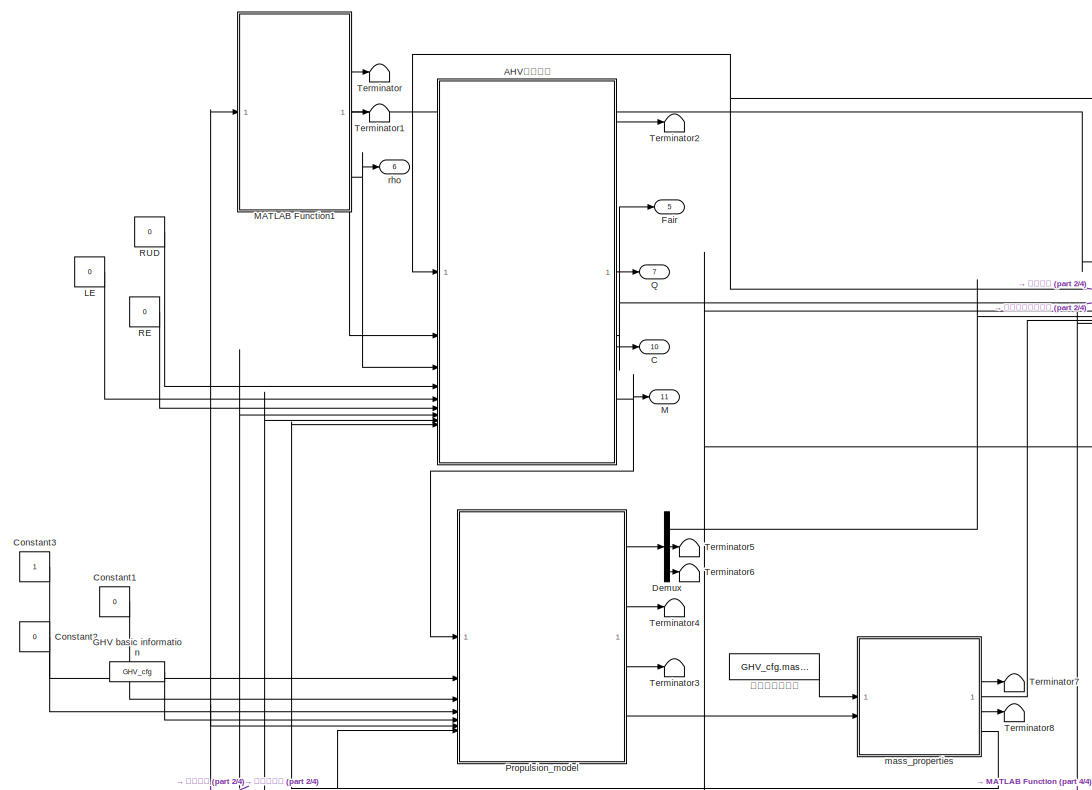
[diagram: root canvas - part 1/4, middle left region]
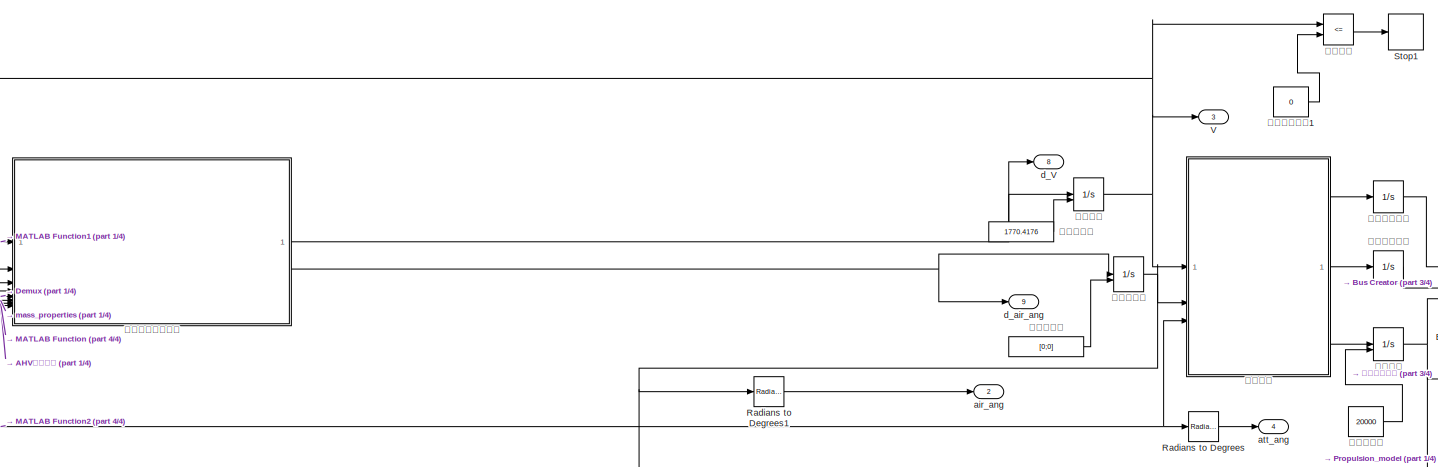
[diagram: root canvas - part 2/4, top right region]
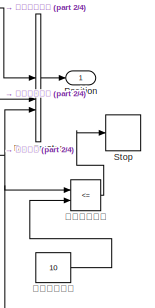
[diagram: root canvas - part 3/4, top right region]
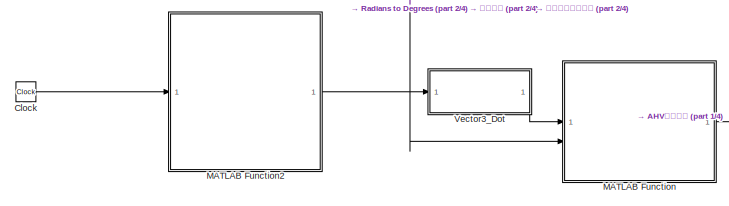
[diagram: root canvas - part 4/4, bottom left region]
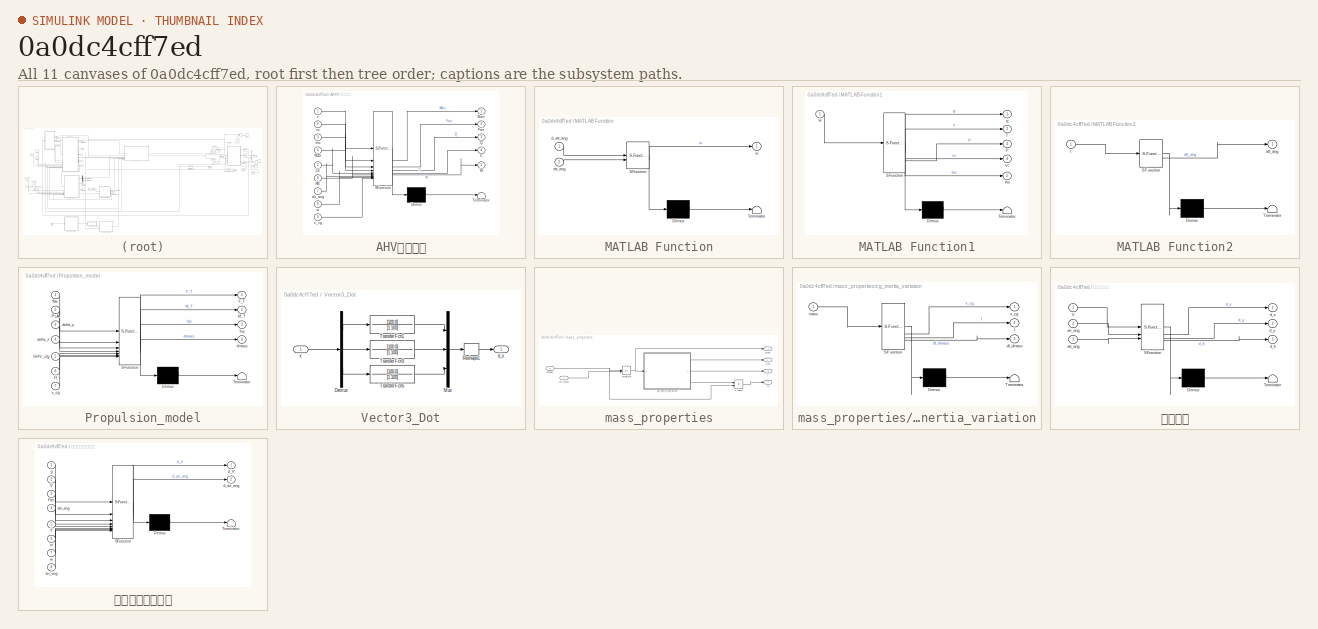
[diagram: thumbnail index - all 11 canvases of the model, root first then tree order]
MODEL slx_0a0dc4cff7ed
KIND model
CONFIG AbsTol = auto
CONFIG EnableMultiTasking = off
CONFIG FixedStep = 0.0000001
CONFIG MaxStep = 0.1
CONFIG MinStep = auto
CONFIG RelTol = 1e-3
CONFIG SampleTimeConstraint = Unconstrained
CONFIG SolverName = VariableStepAuto
CONFIG StartTime = 0.0
CONFIG StopTime = 130
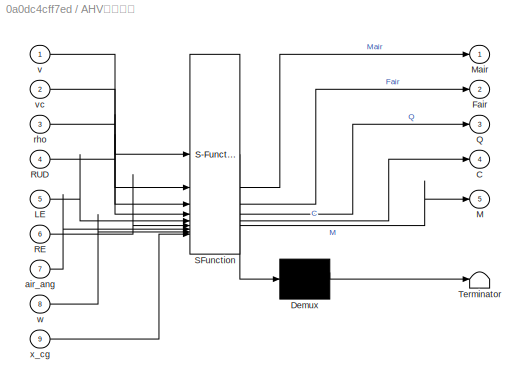
BLOCK [SubSystem] AHV气动参数
  ErrorFcn = Stateflow.Translate.translate
  PermitHierarchicalResolution = ExplicitOnly
  SFBlockType = MATLAB Function
  TreatAsAtomicUnit = on
BLOCK [Demux] AHV气动参数/ Demux 
  Outputs = 1
BLOCK [S-Function] AHV气动参数/ SFunction 
  EnableBusSupport = on
  FunctionName = sf_sfun
  PortCounts = [9 6]
  SFcnIsStateOwnerBlock = off
  SFunctionDeploymentMode = off
  Tag = Stateflow S-Function 4
BLOCK [Terminator] AHV气动参数/ Terminator 
BLOCK [Outport] AHV气动参数/C
  Port = 4
BLOCK [Outport] AHV气动参数/Fair
  Port = 2
BLOCK [Inport] AHV气动参数/LE
  Port = 5
BLOCK [Outport] AHV气动参数/M
  Port = 5
BLOCK [Outport] AHV气动参数/Mair
BLOCK [Outport] AHV气动参数/Q
  Port = 3
BLOCK [Inport] AHV气动参数/RE
  Port = 6
BLOCK [Inport] AHV气动参数/RUD
  Port = 4
BLOCK [Inport] AHV气动参数/air_ang
  Port = 7
BLOCK [Inport] AHV气动参数/rho
  Port = 3
BLOCK [Inport] AHV气动参数/v
BLOCK [Inport] AHV气动参数/vc
  Port = 2
BLOCK [Inport] AHV气动参数/w
  Port = 8
BLOCK [Inport] AHV气动参数/x_cg
  Port = 9
BLOCK [BusCreator] Bus Creator
  DisplayOption = bar
  InheritFromInputs = on
  Inputs = 3
BLOCK [Outport] C
  Port = 10
  SignalName = C
BLOCK [Clock] Clock
BLOCK [Constant] Constant1
  Value = 0
BLOCK [Constant] Constant2
  Value = 0
BLOCK [Constant] Constant3
BLOCK [Demux] Demux
  Outputs = 3
BLOCK [Outport] Fair
  Port = 5
  SignalName = Fair
BLOCK [Constant] GHV basic information
  OutDataTypeStr = Bus: slBus1
  Value = GHV_cfg
  VectorParams1D = off
BLOCK [Constant] LE
  Value = 0
BLOCK [Outport] M
  Port = 11
BLOCK [SubSystem] MATLAB Function
  ErrorFcn = Stateflow.Translate.translate
  PermitHierarchicalResolution = ExplicitOnly
  SFBlockType = MATLAB Function
  TreatAsAtomicUnit = on
BLOCK [Demux] MATLAB Function/ Demux 
  Outputs = 1
BLOCK [S-Function] MATLAB Function/ SFunction 
  EnableBusSupport = on
  FunctionName = sf_sfun
  PortCounts = [2 2]
  SFcnIsStateOwnerBlock = off
  SFunctionDeploymentMode = off
  Tag = Stateflow S-Function 2
BLOCK [Terminator] MATLAB Function/ Terminator 
BLOCK [Inport] MATLAB Function/att_ang
  Port = 2
BLOCK [Inport] MATLAB Function/d_att_ang
BLOCK [Outport] MATLAB Function/w
BLOCK [SubSystem] MATLAB Function1
  ErrorFcn = Stateflow.Translate.translate
  PermitHierarchicalResolution = ExplicitOnly
  SFBlockType = MATLAB Function
  TreatAsAtomicUnit = on
BLOCK [Demux] MATLAB Function1/ Demux 
  Outputs = 1
BLOCK [S-Function] MATLAB Function1/ SFunction 
  EnableBusSupport = on
  FunctionName = sf_sfun
  PortCounts = [1 6]
  SFcnIsStateOwnerBlock = off
  SFunctionDeploymentMode = off
  Tag = Stateflow S-Function 5
BLOCK [Terminator] MATLAB Function1/ Terminator 
BLOCK [Inport] MATLAB Function1/H
BLOCK [Outport] MATLAB Function1/P
  Port = 3
BLOCK [Outport] MATLAB Function1/T
  Port = 2
BLOCK [Outport] MATLAB Function1/g
BLOCK [Outport] MATLAB Function1/rho
  Port = 5
BLOCK [Outport] MATLAB Function1/vc
  Port = 4
BLOCK [SubSystem] MATLAB Function2
  ErrorFcn = Stateflow.Translate.translate
  PermitHierarchicalResolution = ExplicitOnly
  SFBlockType = MATLAB Function
  TreatAsAtomicUnit = on
BLOCK [Demux] MATLAB Function2/ Demux 
  Outputs = 1
BLOCK [S-Function] MATLAB Function2/ SFunction 
  EnableBusSupport = on
  FunctionName = sf_sfun
  PortCounts = [1 2]
  SFcnIsStateOwnerBlock = off
  SFunctionDeploymentMode = off
  Tag = Stateflow S-Function 1
BLOCK [Terminator] MATLAB Function2/ Terminator 
BLOCK [Outport] MATLAB Function2/att_ang
BLOCK [Inport] MATLAB Function2/t
BLOCK [Outport] Position
  SignalName = Position
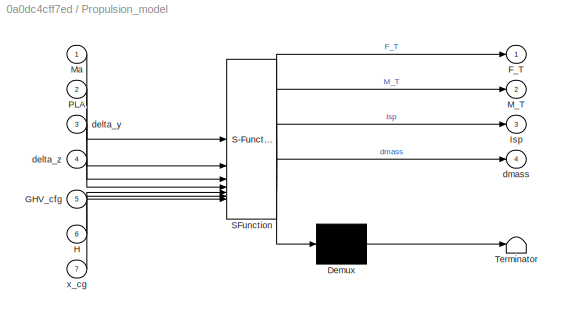
BLOCK [SubSystem] Propulsion_model
  ErrorFcn = Stateflow.Translate.translate
  PermitHierarchicalResolution = ExplicitOnly
  SFBlockType = MATLAB Function
  TreatAsAtomicUnit = on
BLOCK [Demux] Propulsion_model/ Demux 
  Outputs = 1
BLOCK [S-Function] Propulsion_model/ SFunction 
  EnableBusSupport = on
  FunctionName = sf_sfun
  PortCounts = [7 5]
  SFcnIsStateOwnerBlock = off
  SFunctionDeploymentMode = off
  Tag = Stateflow S-Function 7
BLOCK [Terminator] Propulsion_model/ Terminator 
BLOCK [Outport] Propulsion_model/F_T
BLOCK [Inport] Propulsion_model/GHV_cfg
  Port = 5
BLOCK [Inport] Propulsion_model/H
  Port = 6
BLOCK [Outport] Propulsion_model/Isp
  Port = 3
BLOCK [Outport] Propulsion_model/M_T
  Port = 2
BLOCK [Inport] Propulsion_model/Ma
BLOCK [Inport] Propulsion_model/PLA
  Port = 2
BLOCK [Inport] Propulsion_model/delta_y
  Port = 3
BLOCK [Inport] Propulsion_model/delta_z
  Port = 4
BLOCK [Outport] Propulsion_model/dmass
  Port = 4
BLOCK [Inport] Propulsion_model/x_cg
  Port = 7
BLOCK [Outport] Q
  Port = 7
  SignalName = Q
BLOCK [Constant] RE
  Value = 0
BLOCK [Constant] RUD
  Value = 0
BLOCK [Reference] Radians to Degrees  REF=simulink_extras/Transformations/Radians
to Degrees
  SourceBlock = simulink_extras/Transformations/Radians\nto Degrees
  SourceType = RadiansToDegrees
BLOCK [Reference] Radians to Degrees1  REF=simulink_extras/Transformations/Radians
to Degrees
  SourceBlock = simulink_extras/Transformations/Radians\nto Degrees
  SourceType = RadiansToDegrees
BLOCK [Stop] Stop
BLOCK [Stop] Stop1
BLOCK [Terminator] Terminator
BLOCK [Terminator] Terminator1
BLOCK [Terminator] Terminator2
BLOCK [Terminator] Terminator3
BLOCK [Terminator] Terminator4
BLOCK [Terminator] Terminator5
BLOCK [Terminator] Terminator6
BLOCK [Terminator] Terminator7
BLOCK [Terminator] Terminator8
BLOCK [Outport] V
  Port = 3
  SignalName = V
BLOCK [SubSystem] Vector3_Dot
BLOCK [Demux] Vector3_Dot/Demux
  Outputs = 3
BLOCK [Mux] Vector3_Dot/Mux
  DisplayOption = bar
  Inputs = 3
BLOCK [Reshape] Vector3_Dot/Reshape1
  OutputDimensionality = Column vector (2-D)
BLOCK [TransferFcn] Vector3_Dot/Transfer Fcn1
  Denominator = [1 100]
  Numerator = [100 0]
BLOCK [TransferFcn] Vector3_Dot/Transfer Fcn3
  Denominator = [1 100]
  Numerator = [100 0]
BLOCK [TransferFcn] Vector3_Dot/Transfer Fcn5
  Denominator = [1 100]
  Numerator = [100 0]
BLOCK [Outport] Vector3_Dot/d_x
BLOCK [Inport] Vector3_Dot/x
BLOCK [Outport] air_ang
  Port = 2
  SignalName = air_ang
BLOCK [Outport] att_ang
  Port = 4
  SignalName = att_ang
BLOCK [Outport] d_V
  Port = 8
  SignalName = d_V
BLOCK [Outport] d_air_ang
  Port = 9
  SignalName = d_air_ang
BLOCK [SubSystem] mass_properties
BLOCK [Outport] mass_properties/I
  Port = 3
BLOCK [Integrator] mass_properties/Integrator
  InitialConditionSource = external
BLOCK [Product] mass_properties/Product
BLOCK [SubSystem] mass_properties/cg_inertia_variation
  ErrorFcn = Stateflow.Translate.translate
  PermitHierarchicalResolution = ExplicitOnly
  SFBlockType = MATLAB Function
  TreatAsAtomicUnit = on
BLOCK [Demux] mass_properties/cg_inertia_variation/ Demux 
  Outputs = 1
BLOCK [S-Function] mass_properties/cg_inertia_variation/ SFunction 
  EnableBusSupport = on
  FunctionName = sf_sfun
  PortCounts = [1 4]
  SFcnIsStateOwnerBlock = off
  SFunctionDeploymentMode = off
  Tag = Stateflow S-Function 8
BLOCK [Terminator] mass_properties/cg_inertia_variation/ Terminator 
BLOCK [Outport] mass_properties/cg_inertia_variation/I
  Port = 2
BLOCK [Outport] mass_properties/cg_inertia_variation/dI_dmass
  Port = 3
BLOCK [Inport] mass_properties/cg_inertia_variation/mass
BLOCK [Outport] mass_properties/cg_inertia_variation/x_cg
BLOCK [Outport] mass_properties/dI
  Port = 2
BLOCK [Inport] mass_properties/dmass
  Port = 2
BLOCK [Inport] mass_properties/init_mass
BLOCK [Outport] mass_properties/mass
BLOCK [Outport] mass_properties/x_cg
  Port = 4
BLOCK [Outport] rho
  Port = 6
  SignalName = rho
BLOCK [RelationalOperator] 仿真停止条件
  InputSameDT = off
  Operator = <=
  OutDataTypeStr = boolean
  RndMeth = Simplest
BLOCK [Constant] 仿真停止高度
  Value = 10
BLOCK [Constant] 仿真停止高度1
  Value = 0
BLOCK [SubSystem] 位置输出
  ErrorFcn = Stateflow.Translate.translate
  PermitHierarchicalResolution = ExplicitOnly
  SFBlockType = MATLAB Function
  TreatAsAtomicUnit = on
BLOCK [Demux] 位置输出/ Demux 
  Outputs = 1
BLOCK [S-Function] 位置输出/ SFunction 
  EnableBusSupport = on
  FunctionName = sf_sfun
  PortCounts = [3 4]
  SFcnIsStateOwnerBlock = off
  SFunctionDeploymentMode = off
  Tag = Stateflow S-Function 6
BLOCK [Terminator] 位置输出/ Terminator 
BLOCK [Inport] 位置输出/V
BLOCK [Inport] 位置输出/air_ang
  Port = 2
BLOCK [Inport] 位置输出/att_ang
  Port = 3
BLOCK [Outport] 位置输出/d_h
  Port = 3
BLOCK [Outport] 位置输出/d_x
BLOCK [Outport] 位置输出/d_y
  Port = 2
BLOCK [Integrator] 侧向距离积分
BLOCK [Integrator] 前进距离积分
BLOCK [Constant] 气流角初值
  Value = [0;0]
BLOCK [SubSystem] 气流角和速度输出
  ErrorFcn = Stateflow.Translate.translate
  PermitHierarchicalResolution = ExplicitOnly
  SFBlockType = MATLAB Function
  TreatAsAtomicUnit = on
BLOCK [Demux] 气流角和速度输出/ Demux 
  Outputs = 1
BLOCK [S-Function] 气流角和速度输出/ SFunction 
  EnableBusSupport = on
  FunctionName = sf_sfun
  PortCounts = [8 3]
  SFcnIsStateOwnerBlock = off
  SFunctionDeploymentMode = off
  Tag = Stateflow S-Function 3
BLOCK [Terminator] 气流角和速度输出/ Terminator 
BLOCK [Inport] 气流角和速度输出/Fair
  Port = 3
BLOCK [Inport] 气流角和速度输出/T
  Port = 5
BLOCK [Inport] 气流角和速度输出/V
  Port = 2
BLOCK [Inport] 气流角和速度输出/air_ang
  Port = 8
BLOCK [Inport] 气流角和速度输出/att_ang
  Port = 4
BLOCK [Outport] 气流角和速度输出/d_V
BLOCK [Outport] 气流角和速度输出/d_air_ang
  Port = 2
BLOCK [Inport] 气流角和速度输出/g
BLOCK [Inport] 气流角和速度输出/m
  Port = 6
BLOCK [Inport] 气流角和速度输出/w
  Port = 7
BLOCK [Integrator] 气流角积分
  InitialCondition = [0;0]
  InitialConditionSource = external
BLOCK [RelationalOperator] 速度停止
  InputSameDT = off
  Operator = <=
  OutDataTypeStr = boolean
  RndMeth = Simplest
BLOCK [Constant] 速度初始值
  Value = 1770.4176
BLOCK [Integrator] 速度积分
  InitialCondition = 2*340
  InitialConditionSource = external
BLOCK [Constant] 飞行器初始质量
  Value = GHV_cfg.mass_full
BLOCK [Constant] 高度初始值
  Value = 20000
BLOCK [Integrator] 高度积分
  InitialCondition = 80000
  InitialConditionSource = external
LINE AHV气动参数:1 -> Terminator2:1
NET AHV气动参数:2 -> Fair:1, 气流角和速度输出:3
LINE AHV气动参数:3 -> Q:1
LINE AHV气动参数:4 -> C:1
NET AHV气动参数:5 -> M:1, Propulsion_model:1
LINE Bus Creator:1 -> Position:1
LINE Clock:1 -> MATLAB Function2:1
LINE Constant1:1 -> Propulsion_model:3
LINE Constant2:1 -> Propulsion_model:4
LINE Constant3:1 -> Propulsion_model:2
LINE Demux:1 -> 气流角和速度输出:5
LINE Demux:2 -> Terminator5:1
LINE Demux:3 -> Terminator6:1
LINE GHV basic information:1 -> Propulsion_model:5
LINE LE:1 -> AHV气动参数:5
LINE MATLAB Function1:1 -> 气流角和速度输出:1
LINE MATLAB Function1:2 -> Terminator:1
LINE MATLAB Function1:3 -> Terminator1:1
LINE MATLAB Function1:4 -> AHV气动参数:2
NET MATLAB Function1:5 -> AHV气动参数:3, rho:1
NET MATLAB Function2:1 -> MATLAB Function:2, Radians to Degrees:1, Vector3_Dot:1, 位置输出:3, 气流角和速度输出:4
NET MATLAB Function:1 -> AHV气动参数:8, 气流角和速度输出:7
LINE Propulsion_model:1 -> Demux:1
LINE Propulsion_model:2 -> Terminator4:1
LINE Propulsion_model:3 -> Terminator3:1
LINE Propulsion_model:4 -> mass_properties:2
LINE RE:1 -> AHV气动参数:6
LINE RUD:1 -> AHV气动参数:4
LINE Radians to Degrees1:1 -> air_ang:1
LINE Radians to Degrees:1 -> att_ang:1
LINE Vector3_Dot/Demux:1 -> Vector3_Dot/Transfer Fcn1:1
LINE Vector3_Dot/Demux:2 -> Vector3_Dot/Transfer Fcn3:1
LINE Vector3_Dot/Demux:3 -> Vector3_Dot/Transfer Fcn5:1
LINE Vector3_Dot/Mux:1 -> Vector3_Dot/Reshape1:1
LINE Vector3_Dot/Reshape1:1 -> Vector3_Dot/d_x:1
LINE Vector3_Dot/Transfer Fcn1:1 -> Vector3_Dot/Mux:1
LINE Vector3_Dot/Transfer Fcn3:1 -> Vector3_Dot/Mux:2
LINE Vector3_Dot/Transfer Fcn5:1 -> Vector3_Dot/Mux:3
LINE Vector3_Dot/x:1 -> Vector3_Dot/Demux:1
LINE Vector3_Dot:1 -> MATLAB Function:1
NET mass_properties/Integrator:1 -> mass_properties/cg_inertia_variation:1, mass_properties/mass:1
LINE mass_properties/Product:1 -> mass_properties/dI:1
LINE mass_properties/cg_inertia_variation:1 -> mass_properties/x_cg:1
LINE mass_properties/cg_inertia_variation:2 -> mass_properties/I:1
LINE mass_properties/cg_inertia_variation:3 -> mass_properties/Product:1
NET mass_properties/dmass:1 -> mass_properties/Integrator:1, mass_properties/Product:2
LINE mass_properties/init_mass:1 -> mass_properties/Integrator:2
LINE mass_properties:1 -> 气流角和速度输出:6
LINE mass_properties:2 -> Terminator7:1
LINE mass_properties:3 -> Terminator8:1
NET mass_properties:4 -> AHV气动参数:9, Propulsion_model:7
LINE 仿真停止条件:1 -> Stop:1
LINE 仿真停止高度1:1 -> 速度停止:2
LINE 仿真停止高度:1 -> 仿真停止条件:2
LINE 位置输出:1 -> 前进距离积分:1
LINE 位置输出:2 -> 侧向距离积分:1
LINE 位置输出:3 -> 高度积分:1
LINE 侧向距离积分:1 -> Bus Creator:2
LINE 前进距离积分:1 -> Bus Creator:1
LINE 气流角初值:1 -> 气流角积分:2
NET 气流角和速度输出:1 -> d_V:1, 速度积分:1
NET 气流角和速度输出:2 -> d_air_ang:1, 气流角积分:1
NET 气流角积分:1 -> AHV气动参数:7, Radians to Degrees1:1, 位置输出:2, 气流角和速度输出:8
LINE 速度停止:1 -> Stop1:1
LINE 速度初始值:1 -> 速度积分:2
NET 速度积分:1 -> AHV气动参数:1, V:1, 位置输出:1, 气流角和速度输出:2, 速度停止:1
LINE 飞行器初始质量:1 -> mass_properties:1
LINE 高度初始值:1 -> 高度积分:2
NET 高度积分:1 -> Bus Creator:3, MATLAB Function1:1, Propulsion_model:6, 仿真停止条件:1
note: NET lines group one-source signal fan-out (src -> all destinations, sorted); 1:1 wires keep LINE
CHART mass_properties/cg_inertia_variation states=1 transitions=1
  STATE_LABEL 'eML_blk_kernel()'
  STATE_LABEL 'SCRIPT:\nfunction [x_cg, I, dI_dmass] = S_cg_inertia_variation(mass)\n\n     [x_cg, I, dI_dmass] = cg_inertia_variation(mass);\n     \nend\n'
CHART MATLAB Function2 states=1 transitions=1
  STATE_LABEL 'eML_blk_kernel()'
  STATE_LABEL 'SCRIPT:\nfunction att_ang = S_Reference_Flight_Timeline(t)\n    att_ang = zeros(3, 1); %#ok<PREALL>\n    att_ang = Reference_Flight_Timeline(t);\n\nend\n'
CHART MATLAB Function states=1 transitions=1
  STATE_LABEL 'eML_blk_kernel()'
  STATE_LABEL 'SCRIPT:\nfunction w = S_EulerRate2BodyRate(d_att_ang, att_ang)\n    w = zeros(3, 1); %#ok<PREALL>\n    w = EulerRate2BodyRate(d_att_ang, att_ang);\n\nend\n'
CHART 气流角和速度输出 states=1 transitions=1
  STATE_LABEL 'eML_blk_kernel()'
  STATE_LABEL 'SCRIPT:\nfunction [d_V, d_air_ang] = S_tra_dyn_VarialbeMass(g, V, Fair, att_ang, T, m, w, air_ang)\n\n     d_V = zeros(1, 1);\n     d_air_ang = zeros(2, 1);\n    [d_V, d_air_ang] = tra_dyn_VarialbeMass(Fair, T, g, V, air_ang, att_ang, w, m);\n\n\n\nend\n'
CHART AHV气动参数 states=1 transitions=1
  STATE_LABEL 'eML_blk_kernel()'
  STATE_LABEL 'SCRIPT:\nfunction [Mair, Fair, Q, C, M] = S_Get_Aerodynamic_xcg(v, vc, rho, RUD, LE, RE, air_ang, w, x_cg)\n\n    Fair = zeros(3, 1);\n    Mair = zeros(3, 1);\n    C = zeros(6, 1);\n    M = zeros(1, 1);\n    Q = zeros(1, 1);\n\n[M, Fair, Mair, Q, C] = Get_Aerodynamic_xcg(LE, RE, RUD, air_ang, v, w, vc, rho, x_cg);\n   \nend\n'
CHART MATLAB Function1 states=1 transitions=1
  STATE_LABEL 'eML_blk_kernel()'
  STATE_LABEL 'SCRIPT:\nfunction [g, T, P, vc, rho] = S_EarthEnvironment(H)\n\n[T, vc, P, rho, g] = EarthEnvironment(H);\n\nend'
CHART 位置输出 states=1 transitions=1
  STATE_LABEL 'eML_blk_kernel()'
  STATE_LABEL 'SCRIPT:\nfunction [d_x, d_y, d_h] = S_tra_kin(V, air_ang, att_ang)\n\n   [d_x, d_y, d_h] = tra_kin(V, air_ang, att_ang);\n\nend'
CHART Propulsion_model states=1 transitions=1
  STATE_LABEL 'eML_blk_kernel()'
  STATE_LABEL 'SCRIPT:\nfunction [F_T,M_T, Isp,  dmass] = S_Propulsion_model(Ma, PLA, delta_y, delta_z, GHV_cfg, H, x_cg)\n    F_T = zeros(3, 1); %#ok<PREALL>\n    M_T = zeros(3, 1); %#ok<PREALL>\n   [F_T, M_T, Isp, dmass] = Propulsion_model(PLA, H, Ma, delta_y, delta_z, GHV_cfg, x_cg);\n\nend'
CHART  states=0 transitions=0
CHART  states=0 transitions=0
CHART  states=0 transitions=0
CHART  states=0 transitions=0
CHART  states=0 transitions=0
CHART  states=0 transitions=0
CHART  states=0 transitions=0
CHART  states=0 transitions=0
